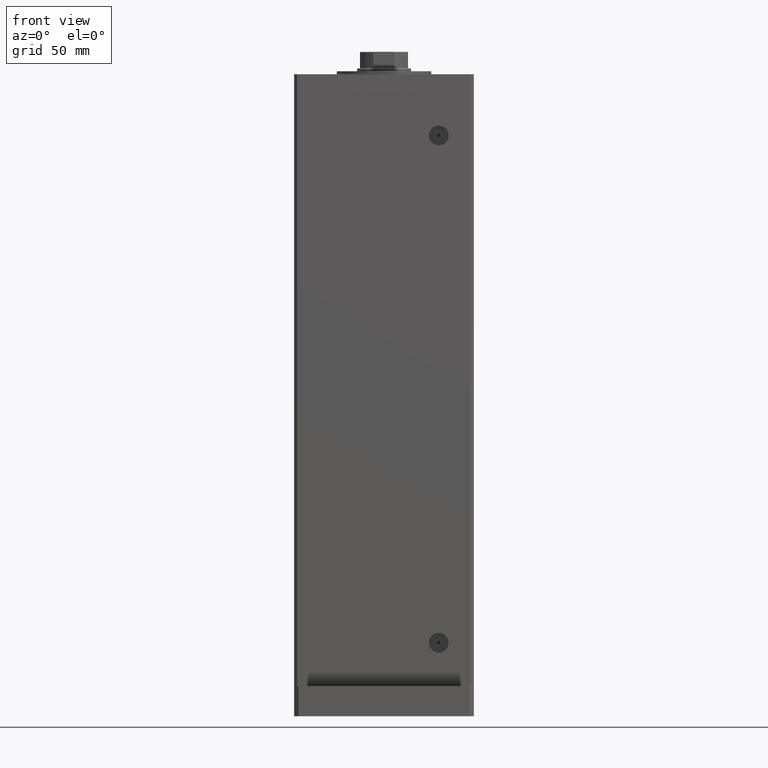
[diagram: clean part render]
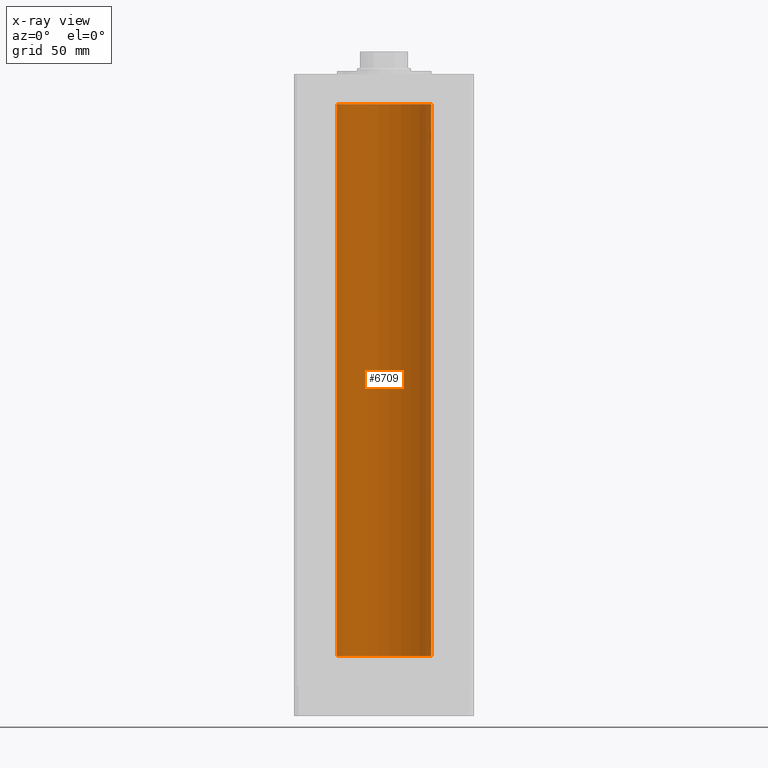
[diagram: x-ray — body ghosted, one internal face saturated and labeled with its STEP entity id]
A machine part, front view, then the same camera in x-ray: the body is ghosted and one INTERNAL B-rep face — a face not visible from any outside direction — is saturated and labeled: STEP entity #6709.
In plain terms, the highlighted cylindrical surface (partial cylindrical patch) has radius 31.5 mm, axis along (-0, -0, -1).
Its self-contained STEP definition (entity closure, byte-faithful):
#298 = FACE_OUTER_BOUND ( 'NONE', #36405, .T. ) ;
#2981 = DIRECTION ( 'NONE',  ( -0.000000000000000000, 0.000000000000000000, 1.000000000000000000 ) ) ;
#3277 = CARTESIAN_POINT ( 'NONE',  ( 31.50000000000000000, 3.857637417314162689E-15, 368.5000000000000000 ) ) ;
#3544 = DIRECTION ( 'NONE',  ( -0.000000000000000000, -0.000000000000000000, -1.000000000000000000 ) ) ;
#4072 = AXIS2_PLACEMENT_3D ( 'NONE', #48868, #20125, #40977 ) ;
#6709 = ADVANCED_FACE ( 'NONE', ( #298 ), #53197, .F. ) ;
#7863 = VERTEX_POINT ( 'NONE', #38202 ) ;
#8275 = DIRECTION ( 'NONE',  ( 1.000000000000000000, 0.000000000000000000, 0.000000000000000000 ) ) ;
#8338 = VECTOR ( 'NONE', #3544, 1000.000000000000000 ) ;
#8808 = EDGE_CURVE ( 'NONE', #16212, #40946, #38160, .T. ) ;
#10051 = AXIS2_PLACEMENT_3D ( 'NONE', #32259, #2981, #36073 ) ;
#14315 = ORIENTED_EDGE ( 'NONE', *, *, #8808, .F. ) ;
#15755 = EDGE_CURVE ( 'NONE', #16212, #34433, #19760, .T. ) ;
#15827 = DIRECTION ( 'NONE',  ( -0.000000000000000000, -0.000000000000000000, -1.000000000000000000 ) ) ;
#16212 = VERTEX_POINT ( 'NONE', #44813 ) ;
#19760 = CIRCLE ( 'NONE', #50062, 31.50000000000000000 ) ;
#20125 = DIRECTION ( 'NONE',  ( -0.000000000000000000, -0.000000000000000000, -1.000000000000000000 ) ) ;
#32259 = CARTESIAN_POINT ( 'NONE',  ( 0.000000000000000000, 0.000000000000000000, 0.000000000000000000 ) ) ;
#32602 = ORIENTED_EDGE ( 'NONE', *, *, #15755, .T. ) ;
#33242 = ORIENTED_EDGE ( 'NONE', *, *, #52520, .T. ) ;
#34433 = VERTEX_POINT ( 'NONE', #51824 ) ;
#36073 = DIRECTION ( 'NONE',  ( 1.000000000000000000, 0.000000000000000000, 0.000000000000000000 ) ) ;
#36405 = EDGE_LOOP ( 'NONE', ( #14315, #32602, #33242, #44258 ) ) ;
#38160 = LINE ( 'NONE', #3277, #8338 ) ;
#38202 = CARTESIAN_POINT ( 'NONE',  ( -31.50000000000000000, 0.000000000000000000, 0.000000000000000000 ) ) ;
#40946 = VERTEX_POINT ( 'NONE', #43777 ) ;
#40977 = DIRECTION ( 'NONE',  ( -1.000000000000000000, 0.000000000000000000, 0.000000000000000000 ) ) ;
#43179 = EDGE_CURVE ( 'NONE', #40946, #7863, #50728, .T. ) ;
#43734 = CARTESIAN_POINT ( 'NONE',  ( -31.50000000000000000, 0.000000000000000000, 368.5000000000000000 ) ) ;
#43777 = CARTESIAN_POINT ( 'NONE',  ( 31.50000000000000000, 3.857637417314162689E-15, 0.000000000000000000 ) ) ;
#44258 = ORIENTED_EDGE ( 'NONE', *, *, #43179, .F. ) ;
#44813 = CARTESIAN_POINT ( 'NONE',  ( 31.50000000000000000, 3.857637417314162689E-15, 368.5000000000000000 ) ) ;
#44881 = DIRECTION ( 'NONE',  ( -0.000000000000000000, 0.000000000000000000, 1.000000000000000000 ) ) ;
#45951 = CARTESIAN_POINT ( 'NONE',  ( 0.000000000000000000, 0.000000000000000000, 368.5000000000000000 ) ) ;
#47816 = LINE ( 'NONE', #43734, #48874 ) ;
#48868 = CARTESIAN_POINT ( 'NONE',  ( 0.000000000000000000, 0.000000000000000000, 368.5000000000000000 ) ) ;
#48874 = VECTOR ( 'NONE', #15827, 1000.000000000000000 ) ;
#50062 = AXIS2_PLACEMENT_3D ( 'NONE', #45951, #44881, #8275 ) ;
#50728 = CIRCLE ( 'NONE', #10051, 31.50000000000000000 ) ;
#51824 = CARTESIAN_POINT ( 'NONE',  ( -31.50000000000000000, 0.000000000000000000, 368.5000000000000000 ) ) ;
#52520 = EDGE_CURVE ( 'NONE', #34433, #7863, #47816, .T. ) ;
#53197 = CYLINDRICAL_SURFACE ( 'NONE', #4072, 31.50000000000000000 ) ;